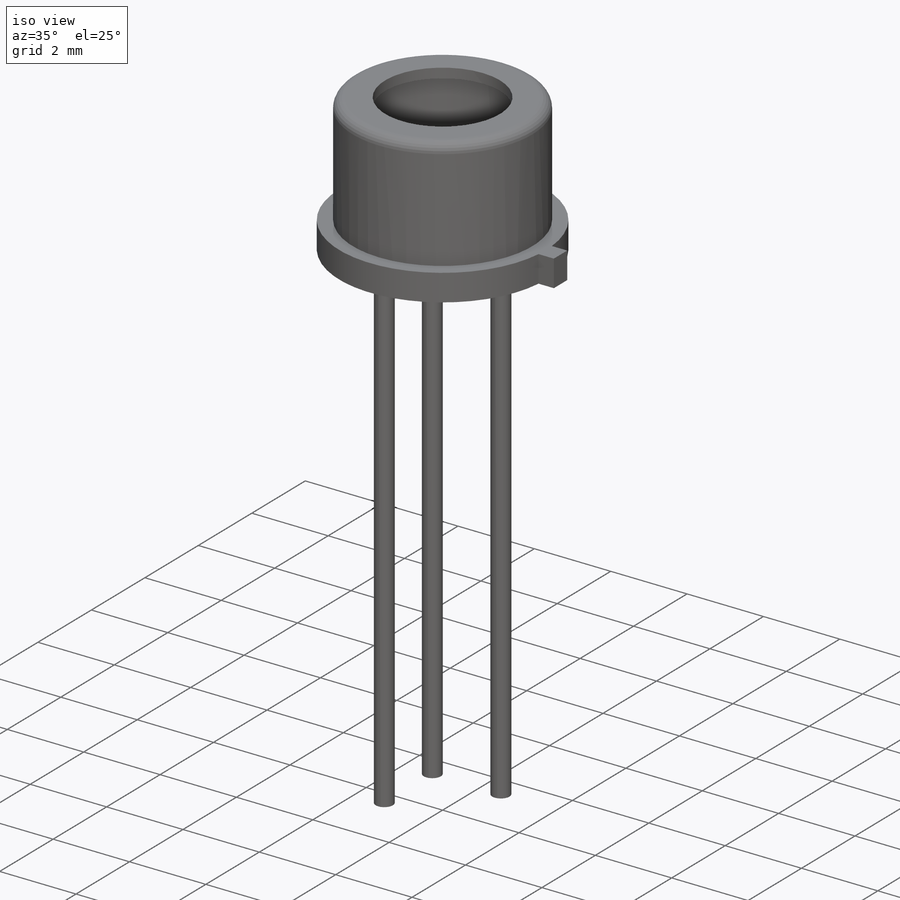
[diagram: iso view]
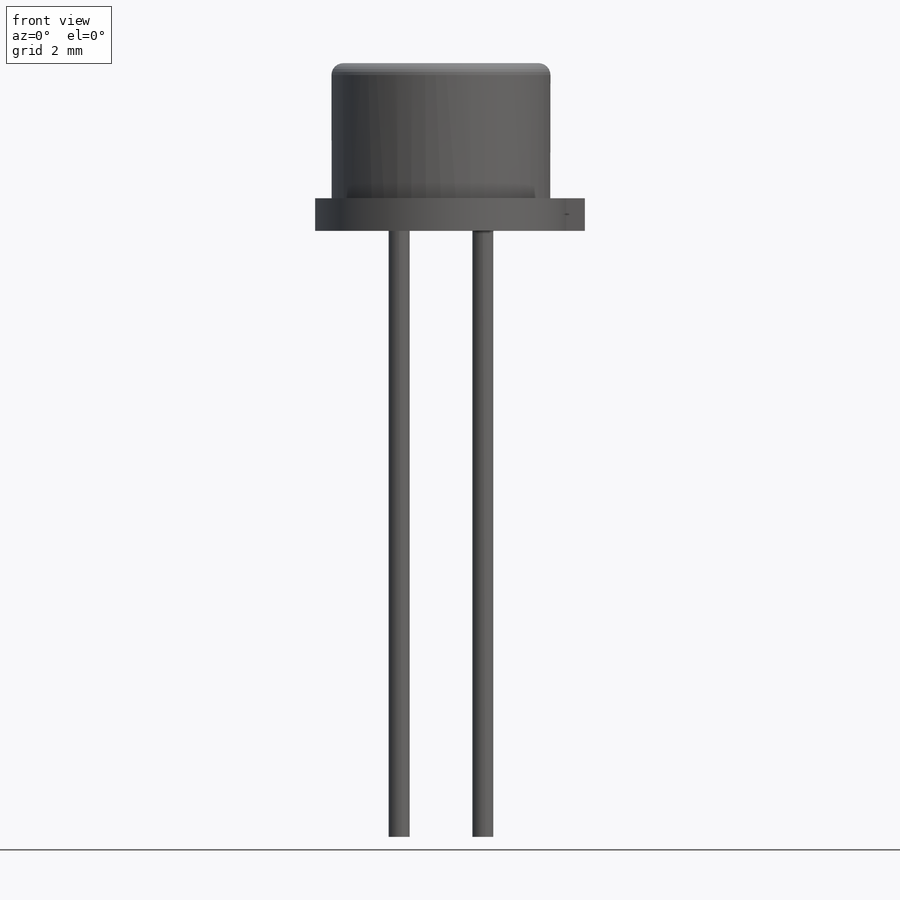
[diagram: front view]
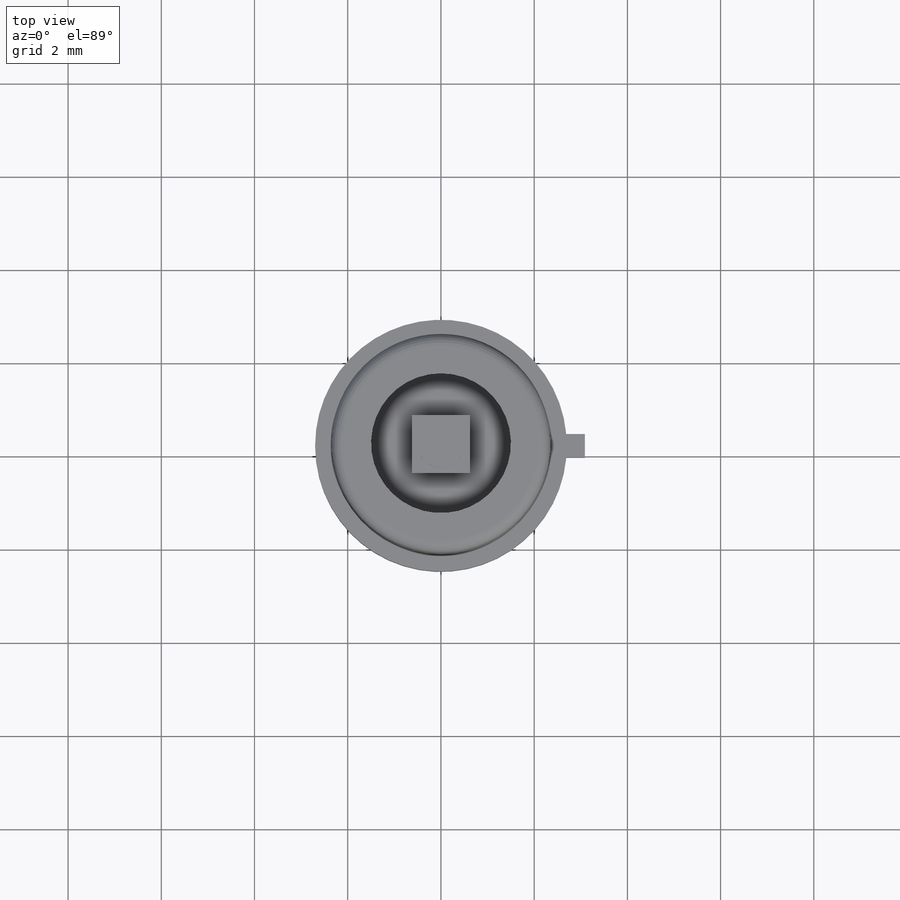
[diagram: top view]
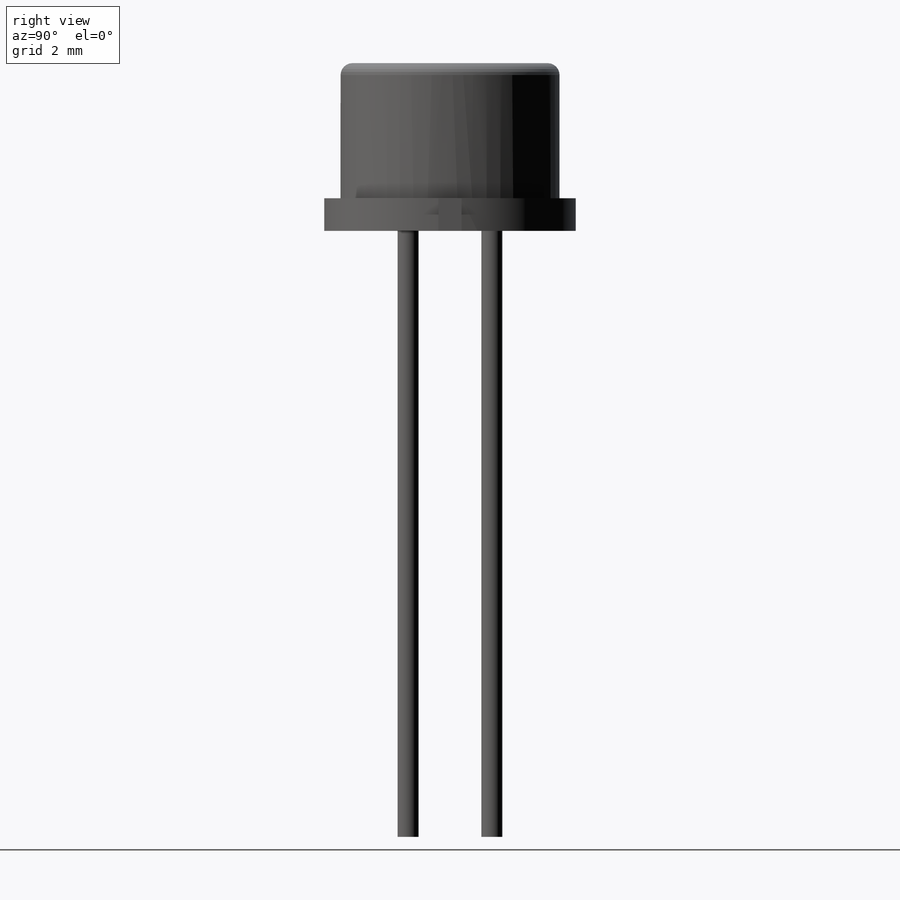
[diagram: right view]
SOLIDWORKS PART (.sldprt)
format: sldprt  version: not decoded by parser v0  size: 304,640 bytes
history: native  units: mm
features: sketch x8, extrude x7, material x1 (+14 scaffold rows collapsed)
feature tree (30):
  scaffold x14  (default folders/planes/origin — collapsed)
  material  "Material <not specified>"
  sketch  "Sketch1"  dims[c1.D7=0.254mm c1.D1=0.7mm c1.D2=4.7mm c1.D3=0.762mm c1.D4=0.508mm c1.D5=10.16mm c2.D4=5.4mm c2.D3=0.508mm c2.D5=~0.268386mm c2.D6=3.6mm c2.D8=3.0mm c2.D1=360.0deg c3.D3=0.254mm c3.D4=1.0mm c3.D7=0.0mm]
  sketch  "Sketch2"  dims[D1=0.0mm]
  extrude  "Boss-Extrude1"  [1 undecoded]
  sketch  "Sketch3"  dims[D2=5.0mm D1=1.25mm]
  extrude  "Boss-Extrude2"  Depth=0.05mm
  sketch  "Sketch8"  dims[D1=1.0mm]
  extrude  "Boss-Extrude6"  Depth=0.1mm
  sketch  "Sketch11"  dims[c1.D4=9.14mm c1.D1=0.15mm c1.D2=0.3mm c1.D3=~6.115706mm c2.D3=270.0deg c2.D4=~0.302907mm c2.D1=0.405mm c2.D2=0.3mm c2.D5=0.405mm c3.D2=0.4mm c3.D1=0.5mm]
  extrude  "Boss-Extrude8"  [1 undecoded]
  sketch  "Sketch5"  dims[c1.D1=2.54mm c1.D2=0.45mm c1.D3=0.45mm c1.D4=0.45mm c1.D5=0.45mm c1.D6=0.45mm c2.D3=2.54mm c3.D3=45.0deg c4.D3=5.08mm c4.D6=3.048mm c5.D3=5.08mm c5.D2=2.54mm c6.D2=90.0deg c7.D2=2.54mm c8.D2=90.0deg c9.D2=2.54mm c10.D2=90.0deg c11.D2=2.54mm c12.D2=90.0deg c13.D2=2.54mm c14.D2=135.0deg c14.D4=~3.336278mm c14.D6=~6.928381mm c14.D3=4.0]
  extrude  "Boss-Extrude4"  Depth=13mm
  sketch  "Sketch7"  dims[D1=1.5mm]
  extrude  "Boss-Extrude5"  Depth=0.4mm
  sketch  "Sketch9"  dims[D1=1.0mm D2=3.8mm D3=~4.462925mm]
  extrude  "Boss-Extrude7"  Depth=0.01mm
decode coverage: 13 of 15 modeling features carry decoded parameters
note: ~ marks probable driven/reference dimensions
note: 2 parameter values undecoded
note: suppression state not decoded; provenance and decode notes live in map.json
